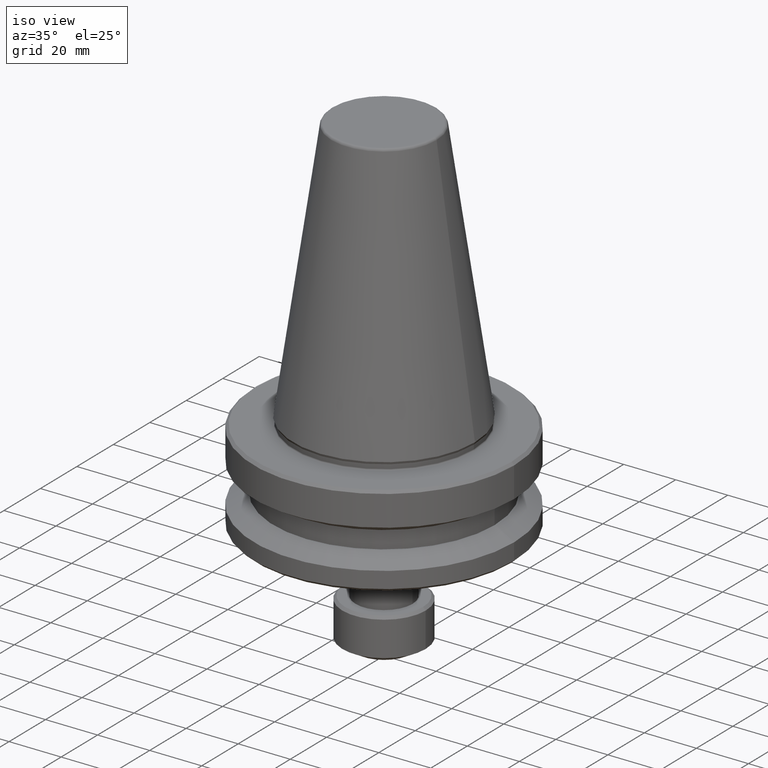
[diagram: clean part render]
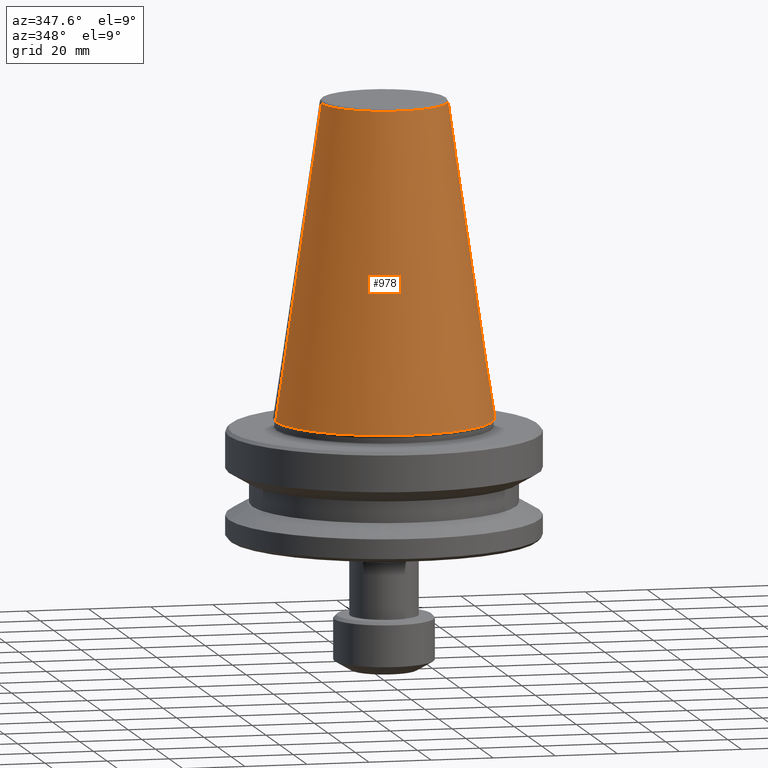
[diagram: tour spotlight — one face highlighted and labeled with its STEP entity id]
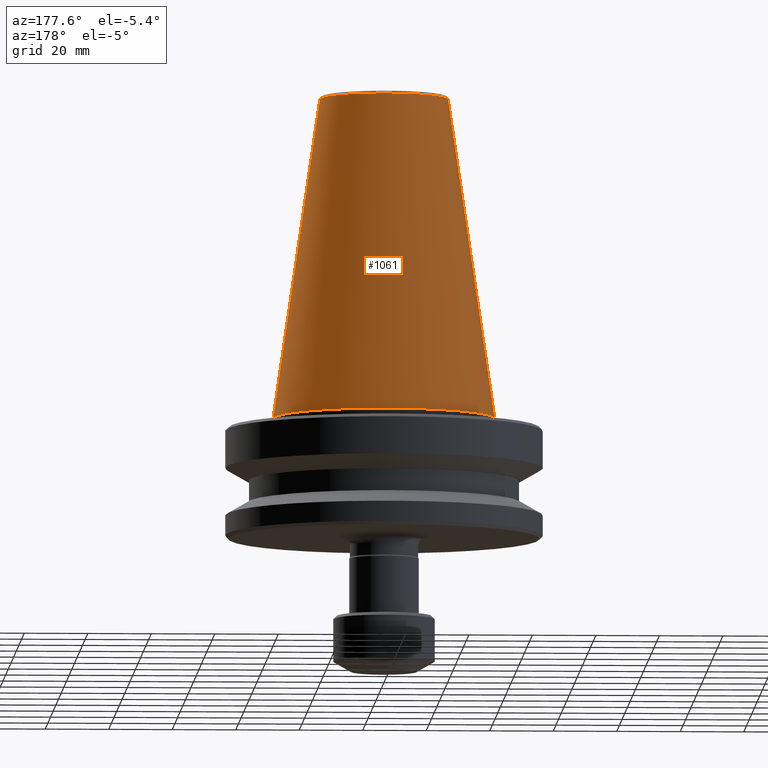
[diagram: tour spotlight — one face highlighted and labeled with its STEP entity id]
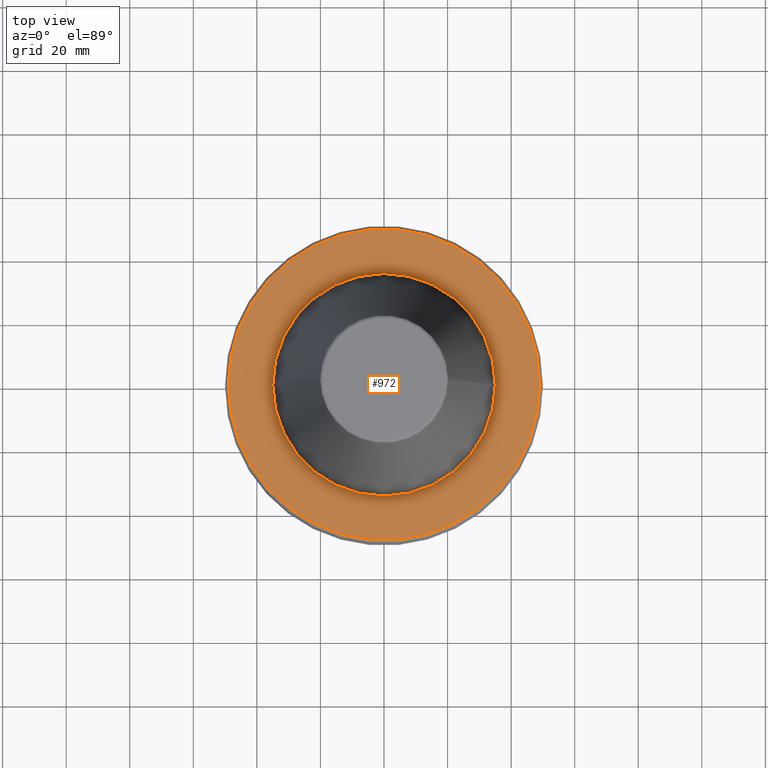
[diagram: tour spotlight — one face highlighted and labeled with its STEP entity id]
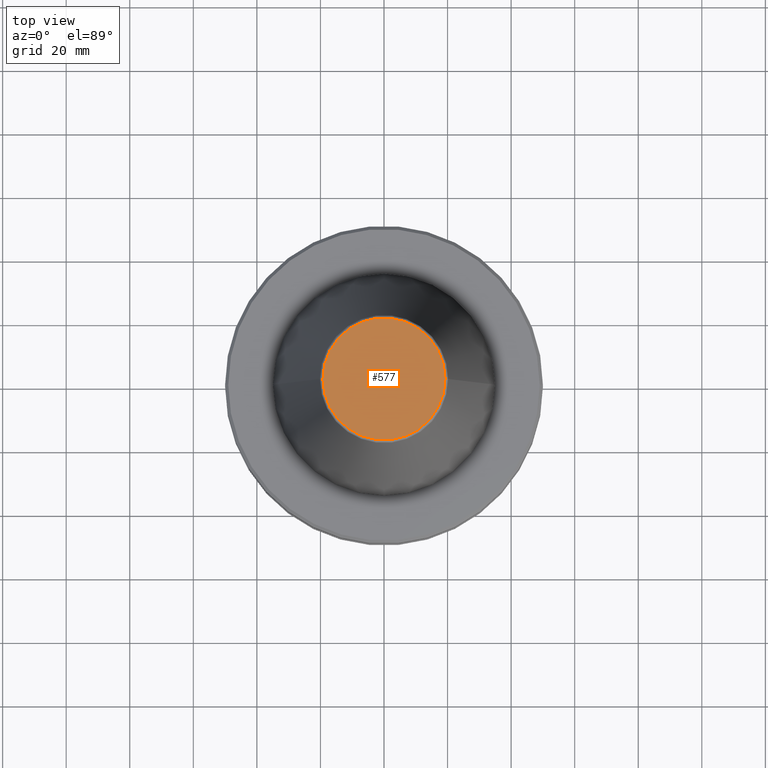
[diagram: tour spotlight — one face highlighted and labeled with its STEP entity id]
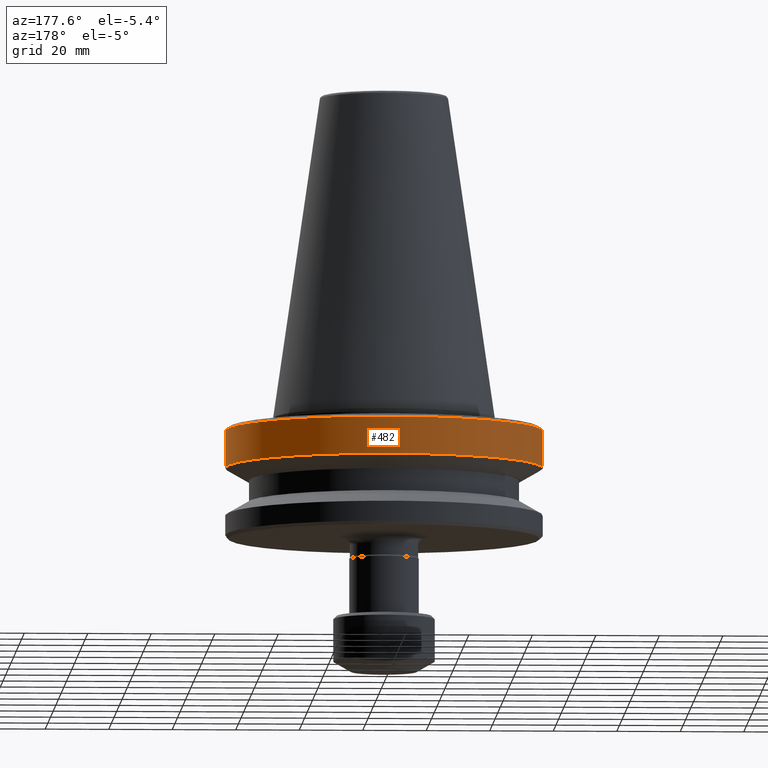
[diagram: tour spotlight — one face highlighted and labeled with its STEP entity id]
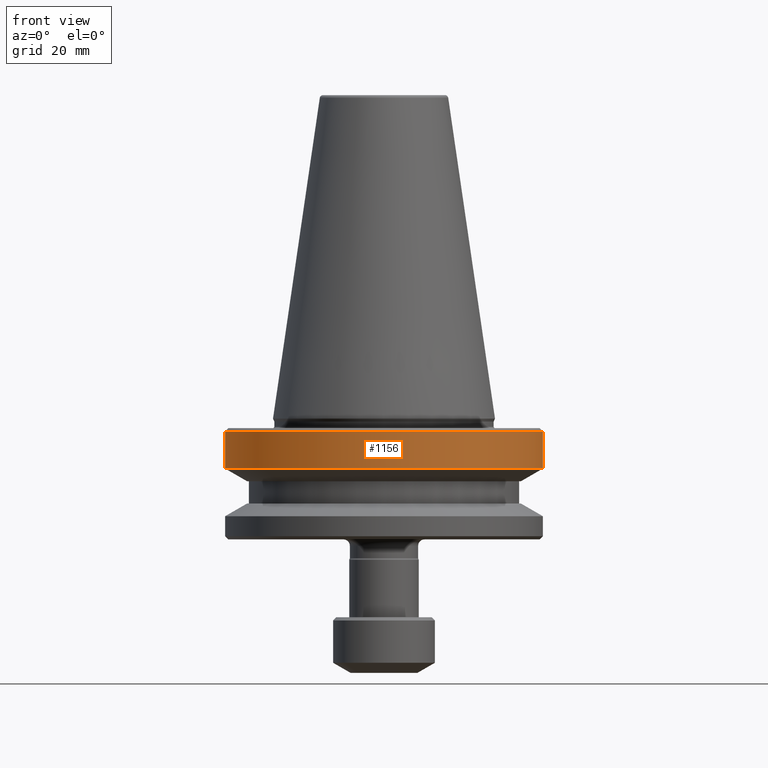
[diagram: tour spotlight — one face highlighted and labeled with its STEP entity id]
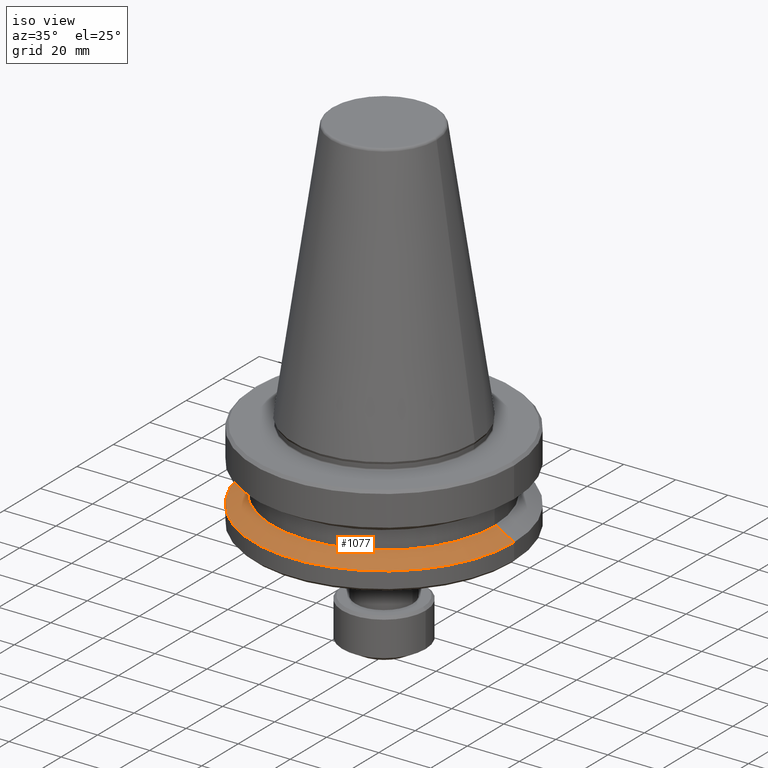
[diagram: tour spotlight — one face highlighted and labeled with its STEP entity id]
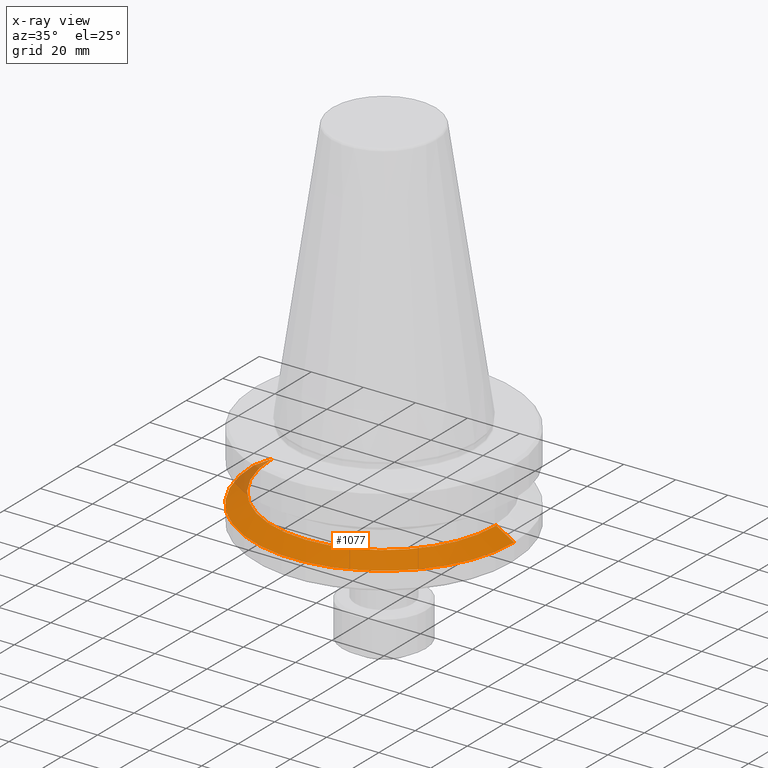
[diagram: x-ray of the same camera — body ghosted, this tour face saturated]
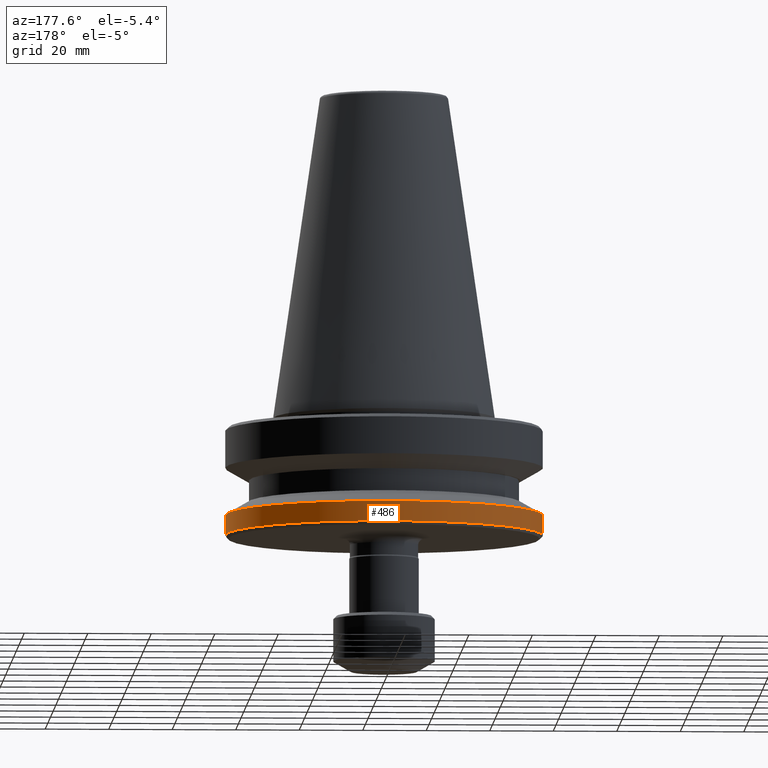
[diagram: tour spotlight — one face highlighted and labeled with its STEP entity id]
A machine part: a face-by-face anatomy tour. The part has 45 B-rep faces; the first image is the clean iso view, then the 8 largest visible faces are spotlighted one at a time (largest first), each with its STEP entity span.

Face 1 — auxiliary view, entity #978. In plain terms, the highlighted conical surface has half-angle 8.297 deg.
Definition (entity closure, byte-faithful):
#141 = DIRECTION ( 'NONE',  ( -0.0000000000000000000, -0.0000000000000000000, 1.000000000000000000 ) ) ;
#160 = DIRECTION ( 'NONE',  ( 0.1443082234293892000, 1.767266039134425700E-017, -0.9895327870518759700 ) ) ;
#182 = LINE ( 'NONE', #424, #265 ) ;
#215 = AXIS2_PLACEMENT_3D ( 'NONE', #1060, #141, #714 ) ;
#228 = FACE_OUTER_BOUND ( 'NONE', #405, .T. ) ;
#265 = VECTOR ( 'NONE', #813, 1000.000000000000100 ) ;
#272 = DIRECTION ( 'NONE',  ( -0.0000000000000000000, -0.0000000000000000000, 1.000000000000000000 ) ) ;
#295 = CONICAL_SURFACE ( 'NONE', #550, 20.20381645192160400, 0.1448138426689040100 ) ;
#324 = ORIENTED_EDGE ( 'NONE', *, *, #1098, .F. ) ;
#343 = CARTESIAN_POINT ( 'NONE',  ( 0.0000000000000000000, 0.0000000000000000000, 100.9443082234295300 ) ) ;
#345 = EDGE_CURVE ( 'NONE', #406, #806, #478, .T. ) ;
#405 = EDGE_LOOP ( 'NONE', ( #324, #962, #737, #465 ) ) ;
#406 = VERTEX_POINT ( 'NONE', #734 ) ;
#424 = CARTESIAN_POINT ( 'NONE',  ( -20.20381645192160400, 0.0000000000000000000, 100.9443082234295300 ) ) ;
#432 = VERTEX_POINT ( 'NONE', #489 ) ;
#465 = ORIENTED_EDGE ( 'NONE', *, *, #345, .T. ) ;
#478 = CIRCLE ( 'NONE', #215, 34.92499999999955000 ) ;
#489 = CARTESIAN_POINT ( 'NONE',  ( -20.20381645192160400, 0.0000000000000000000, 100.9443082234295300 ) ) ;
#500 = AXIS2_PLACEMENT_3D ( 'NONE', #343, #272, #1019 ) ;
#550 = AXIS2_PLACEMENT_3D ( 'NONE', #710, #1216, #1015 ) ;
#710 = CARTESIAN_POINT ( 'NONE',  ( 0.0000000000000000000, 0.0000000000000000000, 100.9443082234295300 ) ) ;
#714 = DIRECTION ( 'NONE',  ( 1.000000000000000000, 0.0000000000000000000, 0.0000000000000000000 ) ) ;
#715 = EDGE_CURVE ( 'NONE', #432, #406, #182, .T. ) ;
#734 = CARTESIAN_POINT ( 'NONE',  ( -34.92499999999955000, 4.277078946022075700E-015, 5.551115123125782700E-014 ) ) ;
#737 = ORIENTED_EDGE ( 'NONE', *, *, #715, .T. ) ;
#806 = VERTEX_POINT ( 'NONE', #929 ) ;
#811 = LINE ( 'NONE', #1071, #880 ) ;
#813 = DIRECTION ( 'NONE',  ( -0.1443082234293892000, 0.0000000000000000000, -0.9895327870518759700 ) ) ;
#880 = VECTOR ( 'NONE', #160, 1000.000000000000100 ) ;
#895 = EDGE_CURVE ( 'NONE', #432, #1065, #925, .T. ) ;
#908 = CARTESIAN_POINT ( 'NONE',  ( 20.20381645192160400, 3.375666430431358700E-015, 100.9443082234295300 ) ) ;
#925 = CIRCLE ( 'NONE', #500, 20.20381645192160400 ) ;
#929 = CARTESIAN_POINT ( 'NONE',  ( 34.92499999999955000, 0.0000000000000000000, 5.551115123125782700E-014 ) ) ;
#962 = ORIENTED_EDGE ( 'NONE', *, *, #895, .F. ) ;
#978 = ADVANCED_FACE ( 'NONE', ( #228 ), #295, .T. ) ;
#1015 = DIRECTION ( 'NONE',  ( -1.000000000000000000, 0.0000000000000000000, 0.0000000000000000000 ) ) ;
#1019 = DIRECTION ( 'NONE',  ( 1.000000000000000000, 0.0000000000000000000, 0.0000000000000000000 ) ) ;
#1060 = CARTESIAN_POINT ( 'NONE',  ( 0.0000000000000000000, 0.0000000000000000000, 5.551115123125782700E-014 ) ) ;
#1065 = VERTEX_POINT ( 'NONE', #908 ) ;
#1071 = CARTESIAN_POINT ( 'NONE',  ( 20.20381645192160400, 2.474253914840642600E-015, 100.9443082234295300 ) ) ;
#1098 = EDGE_CURVE ( 'NONE', #1065, #806, #811, .T. ) ;
#1216 = DIRECTION ( 'NONE',  ( 0.0000000000000000000, 0.0000000000000000000, -1.000000000000000000 ) ) ;

Face 2 — auxiliary view, entity #1061. In plain terms, the highlighted conical surface has half-angle 8.297 deg.
Definition (entity closure, byte-faithful):
#124 = DIRECTION ( 'NONE',  ( 1.000000000000000000, 0.0000000000000000000, 0.0000000000000000000 ) ) ;
#160 = DIRECTION ( 'NONE',  ( 0.1443082234293892000, 1.767266039134425700E-017, -0.9895327870518759700 ) ) ;
#182 = LINE ( 'NONE', #424, #265 ) ;
#187 = AXIS2_PLACEMENT_3D ( 'NONE', #1033, #259, #124 ) ;
#191 = CIRCLE ( 'NONE', #187, 34.92499999999955000 ) ;
#259 = DIRECTION ( 'NONE',  ( -0.0000000000000000000, -0.0000000000000000000, 1.000000000000000000 ) ) ;
#261 = DIRECTION ( 'NONE',  ( 0.0000000000000000000, 0.0000000000000000000, -1.000000000000000000 ) ) ;
#265 = VECTOR ( 'NONE', #813, 1000.000000000000100 ) ;
#273 = DIRECTION ( 'NONE',  ( -1.000000000000000000, 0.0000000000000000000, 0.0000000000000000000 ) ) ;
#275 = EDGE_LOOP ( 'NONE', ( #673, #1206, #911, #842 ) ) ;
#335 = DIRECTION ( 'NONE',  ( 1.000000000000000000, 0.0000000000000000000, 0.0000000000000000000 ) ) ;
#369 = CIRCLE ( 'NONE', #931, 20.20381645192160400 ) ;
#406 = VERTEX_POINT ( 'NONE', #734 ) ;
#424 = CARTESIAN_POINT ( 'NONE',  ( -20.20381645192160400, 0.0000000000000000000, 100.9443082234295300 ) ) ;
#432 = VERTEX_POINT ( 'NONE', #489 ) ;
#489 = CARTESIAN_POINT ( 'NONE',  ( -20.20381645192160400, 0.0000000000000000000, 100.9443082234295300 ) ) ;
#673 = ORIENTED_EDGE ( 'NONE', *, *, #1030, .F. ) ;
#715 = EDGE_CURVE ( 'NONE', #432, #406, #182, .T. ) ;
#734 = CARTESIAN_POINT ( 'NONE',  ( -34.92499999999955000, 4.277078946022075700E-015, 5.551115123125782700E-014 ) ) ;
#798 = AXIS2_PLACEMENT_3D ( 'NONE', #807, #261, #273 ) ;
#806 = VERTEX_POINT ( 'NONE', #929 ) ;
#807 = CARTESIAN_POINT ( 'NONE',  ( 0.0000000000000000000, 0.0000000000000000000, 100.9443082234295300 ) ) ;
#811 = LINE ( 'NONE', #1071, #880 ) ;
#813 = DIRECTION ( 'NONE',  ( -0.1443082234293892000, 0.0000000000000000000, -0.9895327870518759700 ) ) ;
#840 = DIRECTION ( 'NONE',  ( -0.0000000000000000000, -0.0000000000000000000, 1.000000000000000000 ) ) ;
#842 = ORIENTED_EDGE ( 'NONE', *, *, #715, .F. ) ;
#845 = CONICAL_SURFACE ( 'NONE', #798, 20.20381645192160400, 0.1448138426689040100 ) ;
#858 = CARTESIAN_POINT ( 'NONE',  ( 0.0000000000000000000, 0.0000000000000000000, 100.9443082234295300 ) ) ;
#880 = VECTOR ( 'NONE', #160, 1000.000000000000100 ) ;
#908 = CARTESIAN_POINT ( 'NONE',  ( 20.20381645192160400, 3.375666430431358700E-015, 100.9443082234295300 ) ) ;
#911 = ORIENTED_EDGE ( 'NONE', *, *, #1016, .T. ) ;
#929 = CARTESIAN_POINT ( 'NONE',  ( 34.92499999999955000, 0.0000000000000000000, 5.551115123125782700E-014 ) ) ;
#931 = AXIS2_PLACEMENT_3D ( 'NONE', #858, #840, #335 ) ;
#1016 = EDGE_CURVE ( 'NONE', #806, #406, #191, .T. ) ;
#1030 = EDGE_CURVE ( 'NONE', #1065, #432, #369, .T. ) ;
#1033 = CARTESIAN_POINT ( 'NONE',  ( 0.0000000000000000000, 0.0000000000000000000, 5.551115123125782700E-014 ) ) ;
#1059 = FACE_OUTER_BOUND ( 'NONE', #275, .T. ) ;
#1061 = ADVANCED_FACE ( 'NONE', ( #1059 ), #845, .T. ) ;
#1065 = VERTEX_POINT ( 'NONE', #908 ) ;
#1071 = CARTESIAN_POINT ( 'NONE',  ( 20.20381645192160400, 2.474253914840642600E-015, 100.9443082234295300 ) ) ;
#1098 = EDGE_CURVE ( 'NONE', #1065, #806, #811, .T. ) ;
#1206 = ORIENTED_EDGE ( 'NONE', *, *, #1098, .T. ) ;

Face 3 — top view, entity #972. In plain terms, the highlighted planar face has unit normal (0, 0, -1).
Definition (entity closure, byte-faithful):
#9 = CARTESIAN_POINT ( 'NONE',  ( 0.0000000000000000000, 0.0000000000000000000, -3.000000000000058200 ) ) ;
#25 = CARTESIAN_POINT ( 'NONE',  ( 0.0000000000000000000, 0.0000000000000000000, -3.000000000000058200 ) ) ;
#28 = DIRECTION ( 'NONE',  ( 1.000000000000000000, 0.0000000000000000000, 0.0000000000000000000 ) ) ;
#47 = VERTEX_POINT ( 'NONE', #729 ) ;
#58 = DIRECTION ( 'NONE',  ( 1.000000000000000000, 0.0000000000000000000, 0.0000000000000000000 ) ) ;
#194 = FACE_BOUND ( 'NONE', #535, .T. ) ;
#219 = ORIENTED_EDGE ( 'NONE', *, *, #1113, .T. ) ;
#225 = FACE_OUTER_BOUND ( 'NONE', #1201, .T. ) ;
#226 = DIRECTION ( 'NONE',  ( 1.000000000000000000, 0.0000000000000000000, 0.0000000000000000000 ) ) ;
#306 = ORIENTED_EDGE ( 'NONE', *, *, #314, .T. ) ;
#314 = EDGE_CURVE ( 'NONE', #593, #47, #552, .T. ) ;
#332 = CARTESIAN_POINT ( 'NONE',  ( 0.0000000000000000000, 0.0000000000000000000, -3.000000000000058200 ) ) ;
#336 = EDGE_CURVE ( 'NONE', #989, #645, #375, .T. ) ;
#375 = CIRCLE ( 'NONE', #705, 35.00000000000002800 ) ;
#380 = CARTESIAN_POINT ( 'NONE',  ( 49.00000000000026300, 6.062001655779430900E-015, -3.000000000000058200 ) ) ;
#391 = AXIS2_PLACEMENT_3D ( 'NONE', #25, #1022, #430 ) ;
#430 = DIRECTION ( 'NONE',  ( 1.000000000000000000, 0.0000000000000000000, 0.0000000000000000000 ) ) ;
#535 = EDGE_LOOP ( 'NONE', ( #1194, #583 ) ) ;
#552 = CIRCLE ( 'NONE', #1140, 49.00000000000026300 ) ;
#580 = AXIS2_PLACEMENT_3D ( 'NONE', #1185, #1044, #1076 ) ;
#583 = ORIENTED_EDGE ( 'NONE', *, *, #336, .F. ) ;
#593 = VERTEX_POINT ( 'NONE', #380 ) ;
#617 = PLANE ( 'NONE',  #580 ) ;
#645 = VERTEX_POINT ( 'NONE', #836 ) ;
#705 = AXIS2_PLACEMENT_3D ( 'NONE', #332, #1097, #226 ) ;
#706 = AXIS2_PLACEMENT_3D ( 'NONE', #988, #1215, #28 ) ;
#729 = CARTESIAN_POINT ( 'NONE',  ( -49.00000000000026300, 0.0000000000000000000, -3.000000000000058200 ) ) ;
#794 = CIRCLE ( 'NONE', #706, 49.00000000000026300 ) ;
#829 = EDGE_CURVE ( 'NONE', #645, #989, #985, .T. ) ;
#836 = CARTESIAN_POINT ( 'NONE',  ( 35.00000000000002800, 0.0000000000000000000, -3.000000000000183000 ) ) ;
#892 = DIRECTION ( 'NONE',  ( -0.0000000000000000000, -0.0000000000000000000, 1.000000000000000000 ) ) ;
#972 = ADVANCED_FACE ( 'NONE', ( #194, #225 ), #617, .F. ) ;
#985 = CIRCLE ( 'NONE', #391, 35.00000000000002800 ) ;
#988 = CARTESIAN_POINT ( 'NONE',  ( 0.0000000000000000000, 0.0000000000000000000, -3.000000000000058200 ) ) ;
#989 = VERTEX_POINT ( 'NONE', #1124 ) ;
#1022 = DIRECTION ( 'NONE',  ( -0.0000000000000000000, -0.0000000000000000000, 1.000000000000000000 ) ) ;
#1044 = DIRECTION ( 'NONE',  ( 0.0000000000000000000, 0.0000000000000000000, -1.000000000000000000 ) ) ;
#1076 = DIRECTION ( 'NONE',  ( -1.000000000000000000, 0.0000000000000000000, -0.0000000000000000000 ) ) ;
#1097 = DIRECTION ( 'NONE',  ( -0.0000000000000000000, -0.0000000000000000000, 1.000000000000000000 ) ) ;
#1113 = EDGE_CURVE ( 'NONE', #47, #593, #794, .T. ) ;
#1124 = CARTESIAN_POINT ( 'NONE',  ( -35.00000000000002800, 4.286263797015739700E-015, -3.000000000000183000 ) ) ;
#1140 = AXIS2_PLACEMENT_3D ( 'NONE', #9, #892, #58 ) ;
#1185 = CARTESIAN_POINT ( 'NONE',  ( 0.0000000000000000000, 0.0000000000000000000, -3.000000000000058200 ) ) ;
#1194 = ORIENTED_EDGE ( 'NONE', *, *, #829, .F. ) ;
#1201 = EDGE_LOOP ( 'NONE', ( #219, #306 ) ) ;
#1215 = DIRECTION ( 'NONE',  ( -0.0000000000000000000, -0.0000000000000000000, 1.000000000000000000 ) ) ;

Face 4 — top view, entity #577. In plain terms, the highlighted planar face has unit normal (0, 0, -1).
Definition (entity closure, byte-faithful):
#94 = CIRCLE ( 'NONE', #181, 19.21428366486976800 ) ;
#107 = AXIS2_PLACEMENT_3D ( 'NONE', #728, #433, #512 ) ;
#133 = VERTEX_POINT ( 'NONE', #979 ) ;
#175 = ORIENTED_EDGE ( 'NONE', *, *, #643, .T. ) ;
#180 = DIRECTION ( 'NONE',  ( 1.000000000000000000, 0.0000000000000000000, 0.0000000000000000000 ) ) ;
#181 = AXIS2_PLACEMENT_3D ( 'NONE', #331, #487, #180 ) ;
#212 = EDGE_LOOP ( 'NONE', ( #736, #175 ) ) ;
#331 = CARTESIAN_POINT ( 'NONE',  ( 0.0000000000000000000, 0.0000000000000000000, 101.8000000000001700 ) ) ;
#396 = CARTESIAN_POINT ( 'NONE',  ( -19.21428366486976800, 2.413662506824927400E-015, 101.8000000000001700 ) ) ;
#433 = DIRECTION ( 'NONE',  ( -0.0000000000000000000, -0.0000000000000000000, 1.000000000000000000 ) ) ;
#451 = AXIS2_PLACEMENT_3D ( 'NONE', #1222, #1083, #604 ) ;
#453 = VERTEX_POINT ( 'NONE', #396 ) ;
#487 = DIRECTION ( 'NONE',  ( -0.0000000000000000000, -0.0000000000000000000, 1.000000000000000000 ) ) ;
#512 = DIRECTION ( 'NONE',  ( 1.000000000000000000, 0.0000000000000000000, 0.0000000000000000000 ) ) ;
#577 = ADVANCED_FACE ( 'NONE', ( #1137 ), #629, .F. ) ;
#604 = DIRECTION ( 'NONE',  ( -1.000000000000000000, 0.0000000000000000000, -0.0000000000000000000 ) ) ;
#629 = PLANE ( 'NONE',  #451 ) ;
#643 = EDGE_CURVE ( 'NONE', #453, #133, #94, .T. ) ;
#728 = CARTESIAN_POINT ( 'NONE',  ( 0.0000000000000000000, 0.0000000000000000000, 101.8000000000001700 ) ) ;
#736 = ORIENTED_EDGE ( 'NONE', *, *, #1123, .T. ) ;
#771 = CIRCLE ( 'NONE', #107, 19.21428366486976800 ) ;
#979 = CARTESIAN_POINT ( 'NONE',  ( 19.21428366486976800, 0.0000000000000000000, 101.8000000000001700 ) ) ;
#1083 = DIRECTION ( 'NONE',  ( 0.0000000000000000000, 0.0000000000000000000, -1.000000000000000000 ) ) ;
#1123 = EDGE_CURVE ( 'NONE', #133, #453, #771, .T. ) ;
#1137 = FACE_OUTER_BOUND ( 'NONE', #212, .T. ) ;
#1222 = CARTESIAN_POINT ( 'NONE',  ( 0.0000000000000000000, 0.0000000000000000000, 101.8000000000001700 ) ) ;

Face 5 — auxiliary view, entity #482. In plain terms, the highlighted cylindrical surface (partial cylindrical patch) has radius 50 mm, axis along (-0, -0, 1).
Definition (entity closure, byte-faithful):
#71 = VERTEX_POINT ( 'NONE', #97 ) ;
#91 = VERTEX_POINT ( 'NONE', #960 ) ;
#97 = CARTESIAN_POINT ( 'NONE',  ( 50.00000000000027000, 0.0000000000000000000, -15.70022000322653200 ) ) ;
#173 = DIRECTION ( 'NONE',  ( -0.0000000000000000000, -0.0000000000000000000, 1.000000000000000000 ) ) ;
#178 = VERTEX_POINT ( 'NONE', #923 ) ;
#199 = ORIENTED_EDGE ( 'NONE', *, *, #848, .T. ) ;
#247 = DIRECTION ( 'NONE',  ( -0.0000000000000000000, -0.0000000000000000000, 1.000000000000000000 ) ) ;
#252 = ORIENTED_EDGE ( 'NONE', *, *, #1087, .T. ) ;
#256 = CARTESIAN_POINT ( 'NONE',  ( 0.0000000000000000000, 0.0000000000000000000, -15.70022000322653200 ) ) ;
#269 = CARTESIAN_POINT ( 'NONE',  ( -50.00000000000027000, 6.123233995736798400E-015, -15.70022000322653200 ) ) ;
#313 = LINE ( 'NONE', #1007, #315 ) ;
#315 = VECTOR ( 'NONE', #173, 1000.000000000000000 ) ;
#408 = CARTESIAN_POINT ( 'NONE',  ( 0.0000000000000000000, 0.0000000000000000000, 117.7979649317793300 ) ) ;
#428 = AXIS2_PLACEMENT_3D ( 'NONE', #256, #983, #471 ) ;
#431 = EDGE_LOOP ( 'NONE', ( #252, #199, #601, #454 ) ) ;
#454 = ORIENTED_EDGE ( 'NONE', *, *, #783, .F. ) ;
#458 = EDGE_CURVE ( 'NONE', #91, #178, #1182, .T. ) ;
#468 = DIRECTION ( 'NONE',  ( 1.000000000000000000, 0.0000000000000000000, 0.0000000000000000000 ) ) ;
#471 = DIRECTION ( 'NONE',  ( 1.000000000000000000, 0.0000000000000000000, 0.0000000000000000000 ) ) ;
#482 = ADVANCED_FACE ( 'NONE', ( #1165 ), #1108, .T. ) ;
#484 = DIRECTION ( 'NONE',  ( 1.000000000000000000, 0.0000000000000000000, 0.0000000000000000000 ) ) ;
#539 = CARTESIAN_POINT ( 'NONE',  ( -50.00000000000027000, 6.123233995736798400E-015, 117.7979649317793300 ) ) ;
#585 = VECTOR ( 'NONE', #731, 1000.000000000000000 ) ;
#601 = ORIENTED_EDGE ( 'NONE', *, *, #458, .F. ) ;
#694 = LINE ( 'NONE', #539, #585 ) ;
#731 = DIRECTION ( 'NONE',  ( -0.0000000000000000000, -0.0000000000000000000, 1.000000000000000000 ) ) ;
#769 = VERTEX_POINT ( 'NONE', #269 ) ;
#783 = EDGE_CURVE ( 'NONE', #71, #91, #313, .T. ) ;
#824 = CIRCLE ( 'NONE', #428, 50.00000000000027000 ) ;
#848 = EDGE_CURVE ( 'NONE', #769, #178, #694, .T. ) ;
#923 = CARTESIAN_POINT ( 'NONE',  ( -50.00000000000027000, 6.123233995736798400E-015, -4.000000000000058600 ) ) ;
#960 = CARTESIAN_POINT ( 'NONE',  ( 50.00000000000027000, 0.0000000000000000000, -4.000000000000058600 ) ) ;
#964 = CARTESIAN_POINT ( 'NONE',  ( 0.0000000000000000000, 0.0000000000000000000, -4.000000000000058600 ) ) ;
#971 = DIRECTION ( 'NONE',  ( -0.0000000000000000000, -0.0000000000000000000, 1.000000000000000000 ) ) ;
#983 = DIRECTION ( 'NONE',  ( -0.0000000000000000000, -0.0000000000000000000, 1.000000000000000000 ) ) ;
#1007 = CARTESIAN_POINT ( 'NONE',  ( 50.00000000000027000, 0.0000000000000000000, 117.7979649317793300 ) ) ;
#1045 = AXIS2_PLACEMENT_3D ( 'NONE', #408, #247, #468 ) ;
#1087 = EDGE_CURVE ( 'NONE', #71, #769, #824, .T. ) ;
#1090 = AXIS2_PLACEMENT_3D ( 'NONE', #964, #971, #484 ) ;
#1108 = CYLINDRICAL_SURFACE ( 'NONE', #1045, 50.00000000000027000 ) ;
#1165 = FACE_OUTER_BOUND ( 'NONE', #431, .T. ) ;
#1182 = CIRCLE ( 'NONE', #1090, 50.00000000000027000 ) ;

Face 6 — front view, entity #1156. In plain terms, the highlighted cylindrical surface (partial cylindrical patch) has radius 50 mm, axis along (-0, -0, 1).
Definition (entity closure, byte-faithful):
#71 = VERTEX_POINT ( 'NONE', #97 ) ;
#91 = VERTEX_POINT ( 'NONE', #960 ) ;
#97 = CARTESIAN_POINT ( 'NONE',  ( 50.00000000000027000, 0.0000000000000000000, -15.70022000322653200 ) ) ;
#166 = CIRCLE ( 'NONE', #1057, 50.00000000000027000 ) ;
#173 = DIRECTION ( 'NONE',  ( -0.0000000000000000000, -0.0000000000000000000, 1.000000000000000000 ) ) ;
#177 = AXIS2_PLACEMENT_3D ( 'NONE', #803, #286, #258 ) ;
#178 = VERTEX_POINT ( 'NONE', #923 ) ;
#258 = DIRECTION ( 'NONE',  ( 1.000000000000000000, 0.0000000000000000000, 0.0000000000000000000 ) ) ;
#269 = CARTESIAN_POINT ( 'NONE',  ( -50.00000000000027000, 6.123233995736798400E-015, -15.70022000322653200 ) ) ;
#286 = DIRECTION ( 'NONE',  ( -0.0000000000000000000, -0.0000000000000000000, 1.000000000000000000 ) ) ;
#293 = DIRECTION ( 'NONE',  ( -0.0000000000000000000, -0.0000000000000000000, 1.000000000000000000 ) ) ;
#313 = LINE ( 'NONE', #1007, #315 ) ;
#315 = VECTOR ( 'NONE', #173, 1000.000000000000000 ) ;
#325 = EDGE_LOOP ( 'NONE', ( #687, #951, #1171, #788 ) ) ;
#393 = CARTESIAN_POINT ( 'NONE',  ( 0.0000000000000000000, 0.0000000000000000000, -4.000000000000058600 ) ) ;
#539 = CARTESIAN_POINT ( 'NONE',  ( -50.00000000000027000, 6.123233995736798400E-015, 117.7979649317793300 ) ) ;
#551 = CARTESIAN_POINT ( 'NONE',  ( 0.0000000000000000000, 0.0000000000000000000, -15.70022000322653200 ) ) ;
#585 = VECTOR ( 'NONE', #731, 1000.000000000000000 ) ;
#687 = ORIENTED_EDGE ( 'NONE', *, *, #848, .F. ) ;
#694 = LINE ( 'NONE', #539, #585 ) ;
#713 = DIRECTION ( 'NONE',  ( 1.000000000000000000, 0.0000000000000000000, 0.0000000000000000000 ) ) ;
#722 = FACE_OUTER_BOUND ( 'NONE', #325, .T. ) ;
#731 = DIRECTION ( 'NONE',  ( -0.0000000000000000000, -0.0000000000000000000, 1.000000000000000000 ) ) ;
#743 = CYLINDRICAL_SURFACE ( 'NONE', #177, 50.00000000000027000 ) ;
#769 = VERTEX_POINT ( 'NONE', #269 ) ;
#783 = EDGE_CURVE ( 'NONE', #71, #91, #313, .T. ) ;
#788 = ORIENTED_EDGE ( 'NONE', *, *, #1094, .F. ) ;
#803 = CARTESIAN_POINT ( 'NONE',  ( 0.0000000000000000000, 0.0000000000000000000, 117.7979649317793300 ) ) ;
#808 = CIRCLE ( 'NONE', #1138, 50.00000000000027000 ) ;
#848 = EDGE_CURVE ( 'NONE', #769, #178, #694, .T. ) ;
#923 = CARTESIAN_POINT ( 'NONE',  ( -50.00000000000027000, 6.123233995736798400E-015, -4.000000000000058600 ) ) ;
#951 = ORIENTED_EDGE ( 'NONE', *, *, #966, .T. ) ;
#960 = CARTESIAN_POINT ( 'NONE',  ( 50.00000000000027000, 0.0000000000000000000, -4.000000000000058600 ) ) ;
#961 = DIRECTION ( 'NONE',  ( -0.0000000000000000000, -0.0000000000000000000, 1.000000000000000000 ) ) ;
#966 = EDGE_CURVE ( 'NONE', #769, #71, #166, .T. ) ;
#1007 = CARTESIAN_POINT ( 'NONE',  ( 50.00000000000027000, 0.0000000000000000000, 117.7979649317793300 ) ) ;
#1057 = AXIS2_PLACEMENT_3D ( 'NONE', #551, #961, #713 ) ;
#1094 = EDGE_CURVE ( 'NONE', #178, #91, #808, .T. ) ;
#1138 = AXIS2_PLACEMENT_3D ( 'NONE', #393, #293, #1158 ) ;
#1156 = ADVANCED_FACE ( 'NONE', ( #722 ), #743, .T. ) ;
#1158 = DIRECTION ( 'NONE',  ( 1.000000000000000000, 0.0000000000000000000, 0.0000000000000000000 ) ) ;
#1171 = ORIENTED_EDGE ( 'NONE', *, *, #783, .T. ) ;

Face 7 — iso view, entity #1077. An x-ray twin of the same camera follows (body ghosted, this face saturated) — the face is partly hidden behind the body. In plain terms, the highlighted conical surface has half-angle 60 deg.
Definition (entity closure, byte-faithful):
#36 = CARTESIAN_POINT ( 'NONE',  ( 0.0000000000000000000, 0.0000000000000000000, -30.69977999679464300 ) ) ;
#69 = CARTESIAN_POINT ( 'NONE',  ( 49.99999999996497000, 6.123233995732476300E-015, -30.69977999679464300 ) ) ;
#132 = CIRCLE ( 'NONE', #609, 43.07217782645444300 ) ;
#153 = CIRCLE ( 'NONE', #158, 49.99999999996497000 ) ;
#158 = AXIS2_PLACEMENT_3D ( 'NONE', #863, #898, #362 ) ;
#254 = CARTESIAN_POINT ( 'NONE',  ( 0.0000000000000000000, 0.0000000000000000000, -26.70000000002047000 ) ) ;
#267 = ORIENTED_EDGE ( 'NONE', *, *, #928, .T. ) ;
#283 = ORIENTED_EDGE ( 'NONE', *, *, #901, .F. ) ;
#323 = CARTESIAN_POINT ( 'NONE',  ( -43.07217782645444300, 0.0000000000000000000, -26.70000000002047000 ) ) ;
#329 = LINE ( 'NONE', #69, #341 ) ;
#341 = VECTOR ( 'NONE', #1145, 1000.000000000000100 ) ;
#357 = CARTESIAN_POINT ( 'NONE',  ( 49.99999999996497000, 0.0000000000000000000, -30.69977999679464300 ) ) ;
#362 = DIRECTION ( 'NONE',  ( 1.000000000000000000, 0.0000000000000000000, 0.0000000000000000000 ) ) ;
#398 = EDGE_CURVE ( 'NONE', #488, #625, #553, .T. ) ;
#473 = ORIENTED_EDGE ( 'NONE', *, *, #398, .T. ) ;
#483 = CARTESIAN_POINT ( 'NONE',  ( -49.99999999996497000, 0.0000000000000000000, -30.69977999679464300 ) ) ;
#488 = VERTEX_POINT ( 'NONE', #323 ) ;
#506 = CARTESIAN_POINT ( 'NONE',  ( -49.99999999996497700, 6.123233995732477000E-015, -30.69977999679464300 ) ) ;
#537 = DIRECTION ( 'NONE',  ( -0.8660254037844379300, 0.0000000000000000000, -0.5000000000000011100 ) ) ;
#548 = DIRECTION ( 'NONE',  ( 0.0000000000000000000, 0.0000000000000000000, -1.000000000000000000 ) ) ;
#553 = LINE ( 'NONE', #483, #1169 ) ;
#609 = AXIS2_PLACEMENT_3D ( 'NONE', #254, #936, #1197 ) ;
#625 = VERTEX_POINT ( 'NONE', #506 ) ;
#758 = CONICAL_SURFACE ( 'NONE', #1129, 49.99999999996497000, 1.047197551196596500 ) ;
#801 = DIRECTION ( 'NONE',  ( -1.000000000000000000, 0.0000000000000000000, 0.0000000000000000000 ) ) ;
#834 = EDGE_LOOP ( 'NONE', ( #1159, #283, #473, #267 ) ) ;
#857 = FACE_OUTER_BOUND ( 'NONE', #834, .T. ) ;
#862 = VERTEX_POINT ( 'NONE', #357 ) ;
#863 = CARTESIAN_POINT ( 'NONE',  ( 0.0000000000000000000, 0.0000000000000000000, -30.69977999679464300 ) ) ;
#898 = DIRECTION ( 'NONE',  ( -0.0000000000000000000, -0.0000000000000000000, 1.000000000000000000 ) ) ;
#901 = EDGE_CURVE ( 'NONE', #488, #1218, #132, .T. ) ;
#928 = EDGE_CURVE ( 'NONE', #625, #862, #153, .T. ) ;
#936 = DIRECTION ( 'NONE',  ( -0.0000000000000000000, -0.0000000000000000000, 1.000000000000000000 ) ) ;
#1005 = EDGE_CURVE ( 'NONE', #1218, #862, #329, .T. ) ;
#1077 = ADVANCED_FACE ( 'NONE', ( #857 ), #758, .T. ) ;
#1129 = AXIS2_PLACEMENT_3D ( 'NONE', #36, #548, #801 ) ;
#1145 = DIRECTION ( 'NONE',  ( 0.8660254037844379300, 1.060575238724906100E-016, -0.5000000000000011100 ) ) ;
#1159 = ORIENTED_EDGE ( 'NONE', *, *, #1005, .F. ) ;
#1169 = VECTOR ( 'NONE', #537, 1000.000000000000100 ) ;
#1186 = CARTESIAN_POINT ( 'NONE',  ( 43.07217782645444300, 5.699027233239889900E-015, -26.70000000002047000 ) ) ;
#1197 = DIRECTION ( 'NONE',  ( 1.000000000000000000, 0.0000000000000000000, 0.0000000000000000000 ) ) ;
#1218 = VERTEX_POINT ( 'NONE', #1186 ) ;

Face 8 — auxiliary view, entity #486. In plain terms, the highlighted cylindrical surface (partial cylindrical patch) has radius 50 mm, axis along (-0, -0, 1).
Definition (entity closure, byte-faithful):
#5 = CYLINDRICAL_SURFACE ( 'NONE', #870, 49.99999999996496300 ) ;
#104 = VECTOR ( 'NONE', #559, 1000.000000000000000 ) ;
#121 = CARTESIAN_POINT ( 'NONE',  ( 0.0000000000000000000, 0.0000000000000000000, -30.69977999679464300 ) ) ;
#223 = LINE ( 'NONE', #636, #104 ) ;
#277 = AXIS2_PLACEMENT_3D ( 'NONE', #121, #399, #439 ) ;
#304 = DIRECTION ( 'NONE',  ( -0.0000000000000000000, -0.0000000000000000000, 1.000000000000000000 ) ) ;
#357 = CARTESIAN_POINT ( 'NONE',  ( 49.99999999996497000, 0.0000000000000000000, -30.69977999679464300 ) ) ;
#395 = ORIENTED_EDGE ( 'NONE', *, *, #449, .F. ) ;
#399 = DIRECTION ( 'NONE',  ( -0.0000000000000000000, -0.0000000000000000000, 1.000000000000000000 ) ) ;
#439 = DIRECTION ( 'NONE',  ( 1.000000000000000000, 0.0000000000000000000, 0.0000000000000000000 ) ) ;
#449 = EDGE_CURVE ( 'NONE', #862, #625, #626, .T. ) ;
#477 = DIRECTION ( 'NONE',  ( -0.0000000000000000000, -0.0000000000000000000, 1.000000000000000000 ) ) ;
#486 = ADVANCED_FACE ( 'NONE', ( #1104 ), #5, .T. ) ;
#506 = CARTESIAN_POINT ( 'NONE',  ( -49.99999999996497700, 6.123233995732477000E-015, -30.69977999679464300 ) ) ;
#543 = EDGE_CURVE ( 'NONE', #567, #862, #1148, .T. ) ;
#559 = DIRECTION ( 'NONE',  ( -0.0000000000000000000, -0.0000000000000000000, 1.000000000000000000 ) ) ;
#567 = VERTEX_POINT ( 'NONE', #1100 ) ;
#574 = CARTESIAN_POINT ( 'NONE',  ( 49.99999999996496300, 0.0000000000000000000, 117.7979649317793300 ) ) ;
#625 = VERTEX_POINT ( 'NONE', #506 ) ;
#626 = CIRCLE ( 'NONE', #277, 49.99999999996497000 ) ;
#636 = CARTESIAN_POINT ( 'NONE',  ( -49.99999999996496300, 6.123233995732475500E-015, 117.7979649317793300 ) ) ;
#650 = DIRECTION ( 'NONE',  ( -0.0000000000000000000, -0.0000000000000000000, 1.000000000000000000 ) ) ;
#671 = ORIENTED_EDGE ( 'NONE', *, *, #697, .T. ) ;
#684 = VERTEX_POINT ( 'NONE', #1176 ) ;
#697 = EDGE_CURVE ( 'NONE', #684, #625, #223, .T. ) ;
#699 = DIRECTION ( 'NONE',  ( 1.000000000000000000, 0.0000000000000000000, 0.0000000000000000000 ) ) ;
#744 = DIRECTION ( 'NONE',  ( 1.000000000000000000, 0.0000000000000000000, 0.0000000000000000000 ) ) ;
#862 = VERTEX_POINT ( 'NONE', #357 ) ;
#870 = AXIS2_PLACEMENT_3D ( 'NONE', #897, #477, #699 ) ;
#897 = CARTESIAN_POINT ( 'NONE',  ( 0.0000000000000000000, 0.0000000000000000000, 117.7979649317793300 ) ) ;
#1013 = ORIENTED_EDGE ( 'NONE', *, *, #1210, .T. ) ;
#1021 = CARTESIAN_POINT ( 'NONE',  ( 0.0000000000000000000, 0.0000000000000000000, -37.00000000002158600 ) ) ;
#1099 = AXIS2_PLACEMENT_3D ( 'NONE', #1021, #304, #744 ) ;
#1100 = CARTESIAN_POINT ( 'NONE',  ( 49.99999999996496300, 0.0000000000000000000, -37.00000000002158600 ) ) ;
#1104 = FACE_OUTER_BOUND ( 'NONE', #1116, .T. ) ;
#1116 = EDGE_LOOP ( 'NONE', ( #1013, #671, #395, #1139 ) ) ;
#1122 = CIRCLE ( 'NONE', #1099, 49.99999999996496300 ) ;
#1139 = ORIENTED_EDGE ( 'NONE', *, *, #543, .F. ) ;
#1148 = LINE ( 'NONE', #574, #1184 ) ;
#1176 = CARTESIAN_POINT ( 'NONE',  ( -49.99999999996496300, 6.123233995732475500E-015, -37.00000000002158600 ) ) ;
#1184 = VECTOR ( 'NONE', #650, 1000.000000000000000 ) ;
#1210 = EDGE_CURVE ( 'NONE', #567, #684, #1122, .T. ) ;